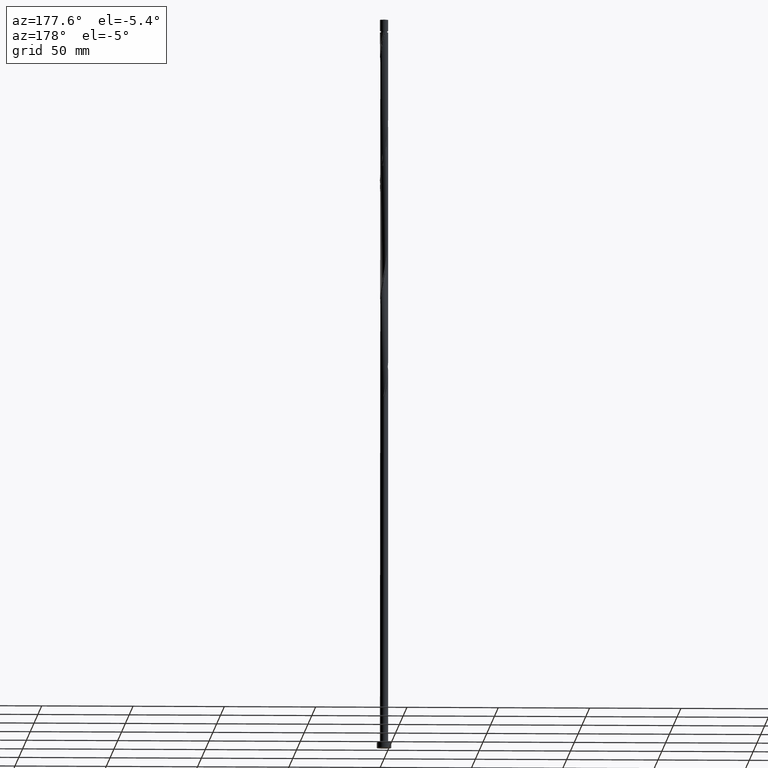
[diagram: clean part render]
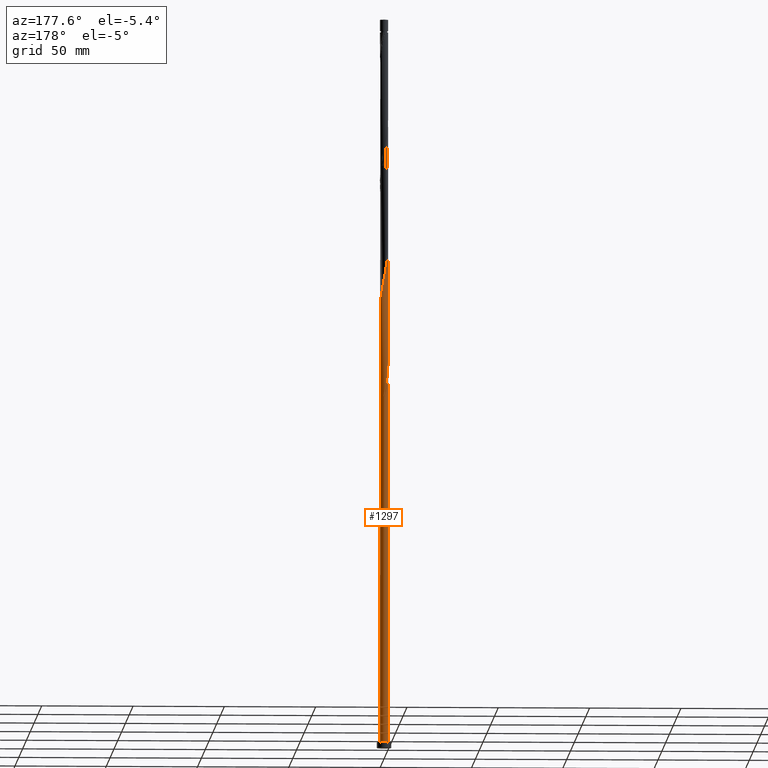
[diagram: same view with one face highlighted and labeled with its STEP entity id]
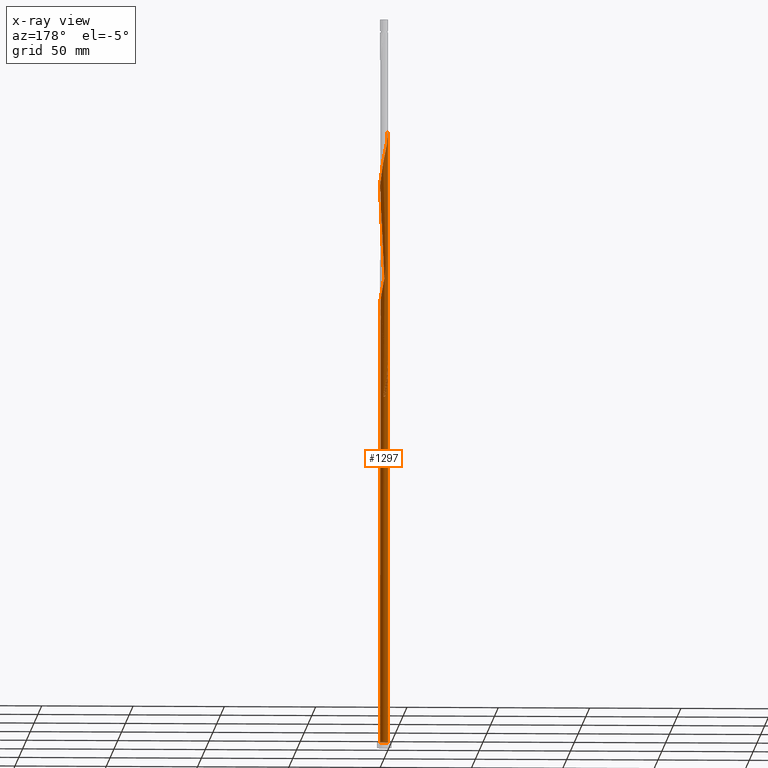
[diagram: x-ray of the same camera — body ghosted, the highlighted face saturated]
A machine part, auxiliary view. The second image highlights one B-rep face of the part: STEP entity #1297.
The next image is the same camera in x-ray: the body ghosted, the highlighted face saturated — about 0% of this face is hidden behind the body in this view.
In plain terms, the highlighted cylindrical surface (bore or boss wall) has radius 2.25 mm, axis along (-0, -0, -1).
Its self-contained STEP definition (entity closure, byte-faithful):
#9 = CARTESIAN_POINT ( 'NONE',  ( 0.6794991854587989488, -2.157940172845781657, 294.1518365135244153 ) ) ;
#11 =( BOUNDED_CURVE ( )  B_SPLINE_CURVE ( 2, ( #149, #721, #567, #1591, #1873, #1294, #557, #518, #1129, #279, #943, #141, #1730, #1151, #410, #1601, #859, #1834, #996, #233, #805, #1092, #1142, #849, #1750, #261, #1283, #371, #1540, #1394, #94, #975, #667, #577, #986, #710, #131, #1456, #1716, #1580, #1571, #1266, #691, #1862, #1274, #1444, #399, #1895, #831, #1435, #1427, #120, #429, #839, #700, #1885, #1740, #1028, #1305, #1161, #21, #202, #48, #608, #1760, #1184, #1017, #1794, #1782, #1476, #1316, #598, #181, #1613, #319, #877, #1174, #297, #37, #9, #438, #308, #1635, #910, #462, #168, #1772, #1040, #331, #1194, #901, #1350, #867, #1508, #1205, #449, #1657, #340, #890, #56, #1340, #762, #1489, #1803, #1625, #1329, #158, #588, #752, #619, #1466, #473, #1050, #742, #1648, #1498, #730, #483, #193, #630, #1060, #638, #1812 ),
 .UNSPECIFIED., .F., .T. ) 
 B_SPLINE_CURVE_WITH_KNOTS ( ( 3, 2, 2, 2, 2, 2, 2, 2, 2, 2, 2, 2, 2, 2, 2, 2, 2, 2, 2, 2, 2, 2, 2, 2, 2, 2, 2, 2, 2, 2, 2, 2, 2, 2, 2, 2, 2, 2, 2, 2, 2, 2, 2, 2, 2, 2, 2, 2, 2, 2, 2, 2, 2, 2, 2, 2, 2, 2, 2, 2, 2, 3 ),
 ( 0.05452860127731155165, 0.05833333333333334814, 0.06666666666666665186, 0.07499999999999995559, 0.08333333333333337034, 0.09166666666666667407, 0.09999999999999997780, 0.1083333333333332815, 0.1166666666666666963, 0.1250000000000000000, 0.1333333333333333037, 0.1416666666666667185, 0.1500000000000000222, 0.1583333333333333259, 0.1666666666666666297, 0.1750000000000000444, 0.1833333333333333481, 0.1916666666666666519, 0.1999999999999999556, 0.2083333333333333703, 0.2166666666666666741, 0.2249999999999999778, 0.2333333333333332815, 0.2416666666666666963, 0.2500000000000000000, 0.2583333333333333037, 0.2666666666666667185, 0.2750000000000000222, 0.2833333333333333259, 0.2916666666666666297, 0.3000000000000000444, 0.3083333333333333481, 0.3166666666666666519, 0.3249999999999999556, 0.3333333333333333703, 0.3416666666666666741, 0.3499999999999999778, 0.3583333333333332815, 0.3666666666666666963, 0.3750000000000000000, 0.3833333333333333037, 0.3916666666666667185, 0.4000000000000000222, 0.4083333333333333259, 0.4166666666666666297, 0.4250000000000000444, 0.4333333333333333481, 0.4416666666666666519, 0.4499999999999999556, 0.4583333333333333703, 0.4666666666666666741, 0.4749999999999999778, 0.4833333333333332815, 0.4916666666666666963, 0.5000000000000000000, 0.5083333333333333037, 0.5166666666666666075, 0.5250000000000000222, 0.5333333333333333259, 0.5416666666666667407, 0.5500000000000000444, 0.5545286012773110729 ),
 .UNSPECIFIED. ) 
 CURVE ( )  GEOMETRIC_REPRESENTATION_ITEM ( )  RATIONAL_B_SPLINE_CURVE ( ( 0.9066196499552687804, 0.9068171577856815047, 0.9090909090909804480, 0.9041108139712286107, 0.9090909090909804480, 0.9041108139712286107, 0.9090909090909804480, 0.9041108139712286107, 0.9090909090909804480, 0.9041108139712286107, 0.9090909090909804480, 0.9041108139712286107, 0.9090909090909804480, 0.9041108139712286107, 0.9090909090909804480, 0.9041108139712286107, 0.9090909090909804480, 0.9041108139712286107, 0.9090909090909804480, 0.9041108139712286107, 0.9090909090909804480, 0.9041108139712286107, 0.9090909090909804480, 0.9041108139712286107, 0.9090909090909804480, 0.9041108139712286107, 0.9090909090909804480, 0.9041108139712286107, 0.9090909090909804480, 0.9041108139712286107, 0.9090909090909804480, 0.9041108139712286107, 0.9090909090909804480, 0.9041108139712286107, 0.9090909090909804480, 0.9041108139712286107, 0.9090909090909804480, 0.9041108139712286107, 0.9090909090909804480, 0.9041108139712286107, 0.9090909090909804480, 0.9041108139712286107, 0.9090909090909804480, 0.9041108139712286107, 0.9090909090909804480, 0.9041108139712286107, 0.9090909090909804480, 0.9041108139712286107, 0.9090909090909804480, 0.9041108139712286107, 0.9090909090909804480, 0.9041108139712286107, 0.9090909090909804480, 0.9041108139712286107, 0.9090909090909804480, 0.9041108139712286107, 0.9090909090909804480, 0.9041108139712286107, 0.9090909090909804480, 0.9041108139712286107, 0.9090909090909804480, 0.9041108139712286107, 0.9090909090909804480, 0.9041108139712286107, 0.9090909090909804480, 0.9041108139712286107, 0.9090909090909804480, 0.9041108139712286107, 0.9090909090909804480, 0.9041108139712286107, 0.9090909090909804480, 0.9041108139712286107, 0.9090909090909804480, 0.9041108139712286107, 0.9090909090909804480, 0.9041108139712286107, 0.9090909090909804480, 0.9041108139712286107, 0.9090909090909804480, 0.9041108139712286107, 0.9090909090909804480, 0.9041108139712286107, 0.9090909090909804480, 0.9041108139712286107, 0.9090909090909804480, 0.9041108139712286107, 0.9090909090909804480, 0.9041108139712286107, 0.9090909090909804480, 0.9041108139712286107, 0.9090909090909804480, 0.9041108139712286107, 0.9090909090909804480, 0.9041108139712286107, 0.9090909090909804480, 0.9041108139712286107, 0.9090909090909804480, 0.9041108139712286107, 0.9090909090909804480, 0.9041108139712286107, 0.9090909090909804480, 0.9041108139712286107, 0.9090909090909804480, 0.9041108139712286107, 0.9090909090909804480, 0.9041108139712286107, 0.9090909090909804480, 0.9041108139712286107, 0.9090909090909804480, 0.9041108139712286107, 0.9090909090909804480, 0.9041108139712286107, 0.9090909090909804480, 0.9041108139712286107, 0.9090909090909804480, 0.9041108139712286107, 0.9090909090909804480, 0.9041108139712286107, 0.9090909090909804480, 0.9041108139712286107, 0.9090909090909804480, 0.9063845652765278871, 0.9066196499552687804 ) ) 
 REPRESENTATION_ITEM ( '' )  );
#21 = CARTESIAN_POINT ( 'NONE',  ( -2.235440230695801667, 0.2555522940353270878, 273.0407254024133863 ) ) ;
#22 = AXIS2_PLACEMENT_3D ( 'NONE', #1083, #496, #1818 ) ;
#37 = CARTESIAN_POINT ( 'NONE',  ( 0.4477443466979825759, -2.205000000000003180, 293.0407254024133863 ) ) ;
#39 = CARTESIAN_POINT ( 'NONE',  ( -2.249999999999999556, -1.091234325708519361E-15, 211.8328353126015031 ) ) ;
#48 = CARTESIAN_POINT ( 'NONE',  ( -2.239722807784164438, -0.2148062948133304950, 275.2629476246356148 ) ) ;
#56 = CARTESIAN_POINT ( 'NONE',  ( 1.529081416802029691, 1.667433642881044786, 316.3740587357467007 ) ) ;
#71 = CARTESIAN_POINT ( 'NONE',  ( -2.133458188693681201, 0.7147420213586817006, 204.1518365135244153 ) ) ;
#75 = CARTESIAN_POINT ( 'NONE',  ( -0.4878194838710431802, 2.196481766634038379, 197.4851698468577865 ) ) ;
#94 = CARTESIAN_POINT ( 'NONE',  ( 2.235440230695801667, -0.2555522940353273098, 239.7073920690800151 ) ) ;
#98 = CARTESIAN_POINT ( 'NONE',  ( -0.2569599475139706102, 2.247753660434001155, 196.3740587357466438 ) ) ;
#104 = VERTEX_POINT ( 'NONE', #129 ) ;
#111 = CIRCLE ( 'NONE', #1541, 2.250000000000000000 ) ;
#120 = CARTESIAN_POINT ( 'NONE',  ( -1.113311487977034275, 1.969508178038165358, 263.0407254024132726 ) ) ;
#129 = CARTESIAN_POINT ( 'NONE',  ( -2.250000000000002665, 7.773176018745549002E-16, 340.9152821588917277 ) ) ;
#131 = CARTESIAN_POINT ( 'NONE',  ( 1.958719006165831056, 1.107212651158192784, 246.3740587357466438 ) ) ;
#141 = CARTESIAN_POINT ( 'NONE',  ( -1.148988371153740085, -1.948910119932248275, 218.5962809579688155 ) ) ;
#149 = CARTESIAN_POINT ( 'NONE',  ( -2.250000000000003109, 2.234788105389345572E-15, 207.5819488255584702 ) ) ;
#158 = CARTESIAN_POINT ( 'NONE',  ( 0.02048521978840399382, 2.249906743794114927, 324.1518365135245858 ) ) ;
#168 = CARTESIAN_POINT ( 'NONE',  ( 1.818131797628322888, -1.346410672519218421, 300.8185031801910441 ) ) ;
#173 = VERTEX_POINT ( 'NONE', #753 ) ;
#181 = CARTESIAN_POINT ( 'NONE',  ( -0.9338336956909288888, -2.047059996383163494, 286.3740587357467007 ) ) ;
#193 = CARTESIAN_POINT ( 'NONE',  ( -2.133458188693681201, 0.7147420213586817006, 337.4851698468577297 ) ) ;
#202 = CARTESIAN_POINT ( 'NONE',  ( -2.262299859130773250, 0.02059805810591770411, 274.1518365135244153 ) ) ;
#215 = CARTESIAN_POINT ( 'NONE',  ( -0.8964053367179171117, 2.063724175441973951, 195.2629476246355580 ) ) ;
#229 = CARTESIAN_POINT ( 'NONE',  ( -0.9338336956909263353, 2.047059996383160829, 199.7073920690799866 ) ) ;
#233 = CARTESIAN_POINT ( 'NONE',  ( 0.6794991854587989488, -2.157940172845781657, 227.4851698468577297 ) ) ;
#246 = EDGE_CURVE ( 'NONE', #1396, #982, #111, .T. ) ;
#261 = CARTESIAN_POINT ( 'NONE',  ( 1.818131797628322888, -1.346410672519218421, 234.1518365135244437 ) ) ;
#270 = DIRECTION ( 'NONE',  ( -1.000000000000000000, 0.000000000000000000, 0.000000000000000000 ) ) ;
#279 = CARTESIAN_POINT ( 'NONE',  ( -1.529081416802029691, -1.667433642881045008, 216.3740587357466723 ) ) ;
#285 = CIRCLE ( 'NONE', #22, 2.250000000000000000 ) ;
#289 = DIRECTION ( 'NONE',  ( -0.000000000000000000, -0.000000000000000000, -1.000000000000000000 ) ) ;
#297 = CARTESIAN_POINT ( 'NONE',  ( 0.2159895079371652871, -2.252059827154224259, 291.9296142913020731 ) ) ;
#308 = CARTESIAN_POINT ( 'NONE',  ( 1.113311487977034053, -1.969508178038165802, 296.3740587357466438 ) ) ;
#319 = CARTESIAN_POINT ( 'NONE',  ( -0.4878194838710451786, -2.196481766634041044, 288.5962809579689861 ) ) ;
#331 = CARTESIAN_POINT ( 'NONE',  ( 2.133458188693681201, -0.7147420213586823667, 304.1518365135244721 ) ) ;
#340 = CARTESIAN_POINT ( 'NONE',  ( 1.842346267189367559, 1.313082314401597728, 314.1518365135244721 ) ) ;
#346 = CARTESIAN_POINT ( 'NONE',  ( -1.305889112093236770, 1.832253701569832804, 197.4851698468577297 ) ) ;
#358 = ORIENTED_EDGE ( 'NONE', *, *, #646, .T. ) ;
#360 = CARTESIAN_POINT ( 'NONE',  ( -2.217145756437552517, 0.4502106477325790168, 209.7073920690799866 ) ) ;
#371 = CARTESIAN_POINT ( 'NONE',  ( 2.058335775126532319, -0.9389775127526261977, 236.3740587357466154 ) ) ;
#399 = CARTESIAN_POINT ( 'NONE',  ( 0.02048521978840399382, 2.249906743794114927, 257.4851698468577865 ) ) ;
#401 =( BOUNDED_CURVE ( )  B_SPLINE_CURVE ( 2, ( #1330, #1370, #1399, #360, #948, #782, #1222, #1839, #1096, #817, #533, #939, #229, #1378, #75, #98, #524, #1855, #1690 ),
 .UNSPECIFIED., .F., .T. ) 
 B_SPLINE_CURVE_WITH_KNOTS ( ( 3, 2, 2, 2, 2, 2, 2, 2, 2, 3 ),
 ( 0.9295286012773114059, 0.9333333333333333481, 0.9416666666666666519, 0.9499999999999999556, 0.9583333333333333703, 0.9666666666666666741, 0.9749999999999999778, 0.9833333333333332815, 0.9916666666666666963, 1.000000000000000000 ),
 .UNSPECIFIED. ) 
 CURVE ( )  GEOMETRIC_REPRESENTATION_ITEM ( )  RATIONAL_B_SPLINE_CURVE ( ( 0.9066196499552608978, 0.9068171577856736221, 0.9090909090909725654, 0.9041108139712207281, 0.9090909090909725654, 0.9041108139712207281, 0.9090909090909725654, 0.9041108139712207281, 0.9090909090909725654, 0.9041108139712207281, 0.9090909090909725654, 0.9041108139712207281, 0.9090909090909725654, 0.9041108139712207281, 0.9090909090909725654, 0.9041108139712207281, 0.9090909090909725654, 0.9041108139712207281, 0.9090909090909725654 ) ) 
 REPRESENTATION_ITEM ( '' )  );
#406 = ORIENTED_EDGE ( 'NONE', *, *, #1887, .F. ) ;
#410 = CARTESIAN_POINT ( 'NONE',  ( -0.4878194838710451786, -2.196481766634041044, 221.9296142913022436 ) ) ;
#422 = ORIENTED_EDGE ( 'NONE', *, *, #911, .F. ) ;
#429 = CARTESIAN_POINT ( 'NONE',  ( -1.305889112093236770, 1.832253701569832804, 264.1518365135244153 ) ) ;
#438 = CARTESIAN_POINT ( 'NONE',  ( 0.8964053367179166676, -2.063724175441973951, 295.2629476246355011 ) ) ;
#449 = CARTESIAN_POINT ( 'NONE',  ( 2.075091745142295885, 0.9013429879147859536, 311.9296142913022436 ) ) ;
#462 = CARTESIAN_POINT ( 'NONE',  ( 1.658299266918881409, -1.520704948810359447, 299.7073920690799582 ) ) ;
#473 = CARTESIAN_POINT ( 'NONE',  ( -1.113311487977034275, 1.969508178038165358, 329.7073920690799582 ) ) ;
#483 = CARTESIAN_POINT ( 'NONE',  ( -2.058335775126532319, 0.9389775127526257537, 336.3740587357467007 ) ) ;
#488 = CARTESIAN_POINT ( 'NONE',  ( -2.208580602260827863, 0.4905065299647369814, 205.2629476246355580 ) ) ;
#496 = DIRECTION ( 'NONE',  ( -2.054325274013051950E-29, -3.083952846180992213E-14, -1.000000000000000000 ) ) ;
#502 = AXIS2_PLACEMENT_3D ( 'NONE', #1433, #973, #564 ) ;
#508 = CARTESIAN_POINT ( 'NONE',  ( -2.058335775126532319, 0.9389775127526257537, 203.0407254024132726 ) ) ;
#518 = CARTESIAN_POINT ( 'NONE',  ( -1.842346267189367337, -1.313082314401598394, 214.1518365135243585 ) ) ;
#524 = CARTESIAN_POINT ( 'NONE',  ( -0.02048521978840224869, 2.249906743794110930, 195.2629476246355580 ) ) ;
#529 = EDGE_CURVE ( 'NONE', #982, #1396, #1602, .T. ) ;
#533 = CARTESIAN_POINT ( 'NONE',  ( -1.339034893977881335, 1.808171881406644088, 201.9296142913022436 ) ) ;
#548 = FACE_OUTER_BOUND ( 'NONE', #1333, .T. ) ;
#557 = CARTESIAN_POINT ( 'NONE',  ( -1.958719006165831056, -1.107212651158192784, 213.0407254024133010 ) ) ;
#564 = DIRECTION ( 'NONE',  ( 1.000000000000000000, 0.000000000000000000, 0.000000000000000000 ) ) ;
#567 = CARTESIAN_POINT ( 'NONE',  ( -2.239722807784164438, -0.2148062948133304950, 208.5962809579689008 ) ) ;
#577 = CARTESIAN_POINT ( 'NONE',  ( 2.217145756437556514, 0.4502106477325789058, 243.0407254024133579 ) ) ;
#580 = VERTEX_POINT ( 'NONE', #874 ) ;
#588 = CARTESIAN_POINT ( 'NONE',  ( -0.2159895079371639826, 2.252059827154224259, 325.2629476246355011 ) ) ;
#598 = CARTESIAN_POINT ( 'NONE',  ( -1.148988371153740085, -1.948910119932248275, 285.2629476246356148 ) ) ;
#608 = CARTESIAN_POINT ( 'NONE',  ( -2.217145756437556514, -0.4502106477325790723, 276.3740587357465301 ) ) ;
#613 = ORIENTED_EDGE ( 'NONE', *, *, #993, .T. ) ;
#619 = CARTESIAN_POINT ( 'NONE',  ( -0.6794991854587996150, 2.157940172845781213, 327.4851698468577297 ) ) ;
#630 = CARTESIAN_POINT ( 'NONE',  ( -2.208580602260827863, 0.4905065299647369814, 338.5962809579688155 ) ) ;
#638 = CARTESIAN_POINT ( 'NONE',  ( -2.250000000000002220, 0.1281909092544831485, 340.3096908495072057 ) ) ;
#646 = EDGE_CURVE ( 'NONE', #580, #1396, #936, .T. ) ;
#650 = CARTESIAN_POINT ( 'NONE',  ( -1.498466736209439043, 1.694999225101500251, 198.5962809579688439 ) ) ;
#667 = CARTESIAN_POINT ( 'NONE',  ( 2.239722807784165326, 0.2148062948133293015, 241.9296142913021868 ) ) ;
#691 = CARTESIAN_POINT ( 'NONE',  ( 0.9338336956909291109, 2.047059996383163494, 253.0407254024133579 ) ) ;
#700 = CARTESIAN_POINT ( 'NONE',  ( -1.658299266918881631, 1.520704948810359225, 266.3740587357465870 ) ) ;
#710 = CARTESIAN_POINT ( 'NONE',  ( 2.075091745142295885, 0.9013429879147859536, 245.2629476246354727 ) ) ;
#721 = CARTESIAN_POINT ( 'NONE',  ( -2.250000000000002220, -0.1076489983951904317, 208.0904973511225080 ) ) ;
#730 = CARTESIAN_POINT ( 'NONE',  ( -1.938233786377428602, 1.142694092635922365, 335.2629476246356148 ) ) ;
#742 = CARTESIAN_POINT ( 'NONE',  ( -1.498466736209439043, 1.694999225101500251, 331.9296142913021868 ) ) ;
#752 = CARTESIAN_POINT ( 'NONE',  ( -0.4477443466979822984, 2.205000000000003180, 326.3740587357467007 ) ) ;
#753 = CARTESIAN_POINT ( 'NONE',  ( -0.4477443466979822428, 2.205000000000003180, 193.0407254024133010 ) ) ;
#762 = CARTESIAN_POINT ( 'NONE',  ( 1.148988371153740751, 1.948910119932247387, 318.5962809579688724 ) ) ;
#782 = CARTESIAN_POINT ( 'NONE',  ( -2.075091745142291444, 0.9013429879147865087, 207.4851698468577581 ) ) ;
#805 = CARTESIAN_POINT ( 'NONE',  ( 0.8964053367179166676, -2.063724175441973951, 228.5962809579688724 ) ) ;
#816 = ORIENTED_EDGE ( 'NONE', *, *, #246, .T. ) ;
#817 = CARTESIAN_POINT ( 'NONE',  ( -1.529081416802026583, 1.667433642881041900, 203.0407254024133294 ) ) ;
#826 = AXIS2_PLACEMENT_3D ( 'NONE', #1120, #289, #270 ) ;
#831 = CARTESIAN_POINT ( 'NONE',  ( -0.4477443466979822984, 2.205000000000003180, 259.7073920690800719 ) ) ;
#839 = CARTESIAN_POINT ( 'NONE',  ( -1.498466736209439043, 1.694999225101500251, 265.2629476246355580 ) ) ;
#849 = CARTESIAN_POINT ( 'NONE',  ( 1.498466736209437933, -1.694999225101500251, 231.9296142913022152 ) ) ;
#859 = CARTESIAN_POINT ( 'NONE',  ( -0.02048521978840372668, -2.249906743794114927, 224.1518365135244153 ) ) ;
#867 = CARTESIAN_POINT ( 'NONE',  ( 2.239722807784165326, 0.2148062948133293015, 308.5962809579689861 ) ) ;
#874 = CARTESIAN_POINT ( 'NONE',  ( -2.250000000000003109, 2.234788105389345572E-15, 207.5819488255584702 ) ) ;
#877 = CARTESIAN_POINT ( 'NONE',  ( -0.2569599475139717204, -2.247753660434005152, 289.7073920690799582 ) ) ;
#890 = CARTESIAN_POINT ( 'NONE',  ( 1.685713841995699624, 1.490257978641320147, 315.2629476246354443 ) ) ;
#893 = DIRECTION ( 'NONE',  ( 1.000000000000000000, 0.000000000000000000, 0.000000000000000000 ) ) ;
#897 = CARTESIAN_POINT ( 'NONE',  ( -0.4477443466979822428, 2.205000000000003180, 193.0407254024133010 ) ) ;
#901 = CARTESIAN_POINT ( 'NONE',  ( 2.235440230695801667, -0.2555522940353273098, 306.3740587357467007 ) ) ;
#910 = CARTESIAN_POINT ( 'NONE',  ( 1.498466736209437933, -1.694999225101500251, 298.5962809579689292 ) ) ;
#911 = EDGE_CURVE ( 'NONE', #173, #580, #981, .T. ) ;
#927 = LINE ( 'NONE', #1056, #1570 ) ;
#935 = DIRECTION ( 'NONE',  ( -0.000000000000000000, -0.000000000000000000, -1.000000000000000000 ) ) ;
#936 = LINE ( 'NONE', #1368, #1695 ) ;
#939 = CARTESIAN_POINT ( 'NONE',  ( -1.148988371153736976, 1.948910119932245166, 200.8185031801911293 ) ) ;
#943 = CARTESIAN_POINT ( 'NONE',  ( -1.339034893977885110, -1.808171881406646087, 217.4851698468578434 ) ) ;
#947 = VERTEX_POINT ( 'NONE', #1045 ) ;
#948 = CARTESIAN_POINT ( 'NONE',  ( -2.146118750789922203, 0.6757768178236830403, 208.5962809579689292 ) ) ;
#973 = DIRECTION ( 'NONE',  ( 0.000000000000000000, 0.000000000000000000, 1.000000000000000000 ) ) ;
#975 = CARTESIAN_POINT ( 'NONE',  ( 2.262299859130773694, -0.02059805810591844311, 240.8185031801911293 ) ) ;
#982 = VERTEX_POINT ( 'NONE', #1226 ) ;
#981 =( BOUNDED_CURVE ( )  B_SPLINE_CURVE ( 2, ( #897, #1530, #215, #1677, #346, #650, #1495, #1669, #1236, #508, #71, #488, #1346, #1067, #1826 ),
 .UNSPECIFIED., .F., .T. ) 
 B_SPLINE_CURVE_WITH_KNOTS ( ( 3, 2, 2, 2, 2, 2, 2, 3 ),
 ( 0.000000000000000000, 0.008333333333333303727, 0.01666666666666671848, 0.02500000000000002220, 0.03333333333333332593, 0.04166666666666662966, 0.05000000000000004441, 0.05452860127731155165 ),
 .UNSPECIFIED. ) 
 CURVE ( )  GEOMETRIC_REPRESENTATION_ITEM ( )  RATIONAL_B_SPLINE_CURVE ( ( 0.9090909090909804480, 0.9041108139712286107, 0.9090909090909804480, 0.9041108139712286107, 0.9090909090909804480, 0.9041108139712286107, 0.9090909090909804480, 0.9041108139712286107, 0.9090909090909804480, 0.9041108139712286107, 0.9090909090909804480, 0.9041108139712286107, 0.9090909090909804480, 0.9063845652765275540, 0.9066196499552687804 ) ) 
 REPRESENTATION_ITEM ( '' )  );
#986 = CARTESIAN_POINT ( 'NONE',  ( 2.146118750789926644, 0.6757768178236822632, 244.1518365135244153 ) ) ;
#993 = EDGE_CURVE ( 'NONE', #173, #947, #285, .T. ) ;
#996 = CARTESIAN_POINT ( 'NONE',  ( 0.4477443466979825759, -2.205000000000003180, 226.3740587357466154 ) ) ;
#1017 = CARTESIAN_POINT ( 'NONE',  ( -1.958719006165831056, -1.107212651158192784, 279.7073920690799582 ) ) ;
#1028 = CARTESIAN_POINT ( 'NONE',  ( -2.058335775126532319, 0.9389775127526257537, 269.7073920690799582 ) ) ;
#1040 = CARTESIAN_POINT ( 'NONE',  ( 2.058335775126532319, -0.9389775127526261977, 303.0407254024133863 ) ) ;
#1045 = CARTESIAN_POINT ( 'NONE',  ( 0.4477443466979829645, 2.204999999999999183, 193.0407254024133010 ) ) ;
#1050 = CARTESIAN_POINT ( 'NONE',  ( -1.305889112093236770, 1.832253701569832804, 330.8185031801911009 ) ) ;
#1056 = CARTESIAN_POINT ( 'NONE',  ( -2.250000000000000000, 0.000000000000000000, 400.0000000000000000 ) ) ;
#1060 = CARTESIAN_POINT ( 'NONE',  ( -2.235440230695801667, 0.2555522940353270878, 339.7073920690800719 ) ) ;
#1061 = EDGE_CURVE ( 'NONE', #104, #1679, #927, .T. ) ;
#1067 = CARTESIAN_POINT ( 'NONE',  ( -2.250000000000003553, 0.1281909092544696593, 206.9763575161739197 ) ) ;
#1083 = CARTESIAN_POINT ( 'NONE',  ( 0.000000000000000000, 0.000000000000000000, 193.0407254024133579 ) ) ;
#1092 = CARTESIAN_POINT ( 'NONE',  ( 1.113311487977034053, -1.969508178038165802, 229.7073920690800151 ) ) ;
#1096 = CARTESIAN_POINT ( 'NONE',  ( -1.685713841995694739, 1.490257978641319481, 204.1518365135244153 ) ) ;
#1120 = CARTESIAN_POINT ( 'NONE',  ( 0.000000000000000000, 0.000000000000000000, 400.0000000000000000 ) ) ;
#1129 = CARTESIAN_POINT ( 'NONE',  ( -1.685713841995698958, -1.490257978641321257, 215.2629476246355296 ) ) ;
#1142 = CARTESIAN_POINT ( 'NONE',  ( 1.305889112093235882, -1.832253701569833249, 230.8185031801911009 ) ) ;
#1151 = CARTESIAN_POINT ( 'NONE',  ( -0.7186790202281182482, -2.145209872834078713, 220.8185031801911293 ) ) ;
#1154 = ORIENTED_EDGE ( 'NONE', *, *, #529, .T. ) ;
#1161 = CARTESIAN_POINT ( 'NONE',  ( -2.208580602260827863, 0.4905065299647369814, 271.9296142913021868 ) ) ;
#1174 = CARTESIAN_POINT ( 'NONE',  ( -0.02048521978840372668, -2.249906743794114927, 290.8185031801911578 ) ) ;
#1184 = CARTESIAN_POINT ( 'NONE',  ( -2.075091745142295441, -0.9013429879147869528, 278.5962809579688724 ) ) ;
#1194 = CARTESIAN_POINT ( 'NONE',  ( 2.208580602260827863, -0.4905065299647383137, 305.2629476246354443 ) ) ;
#1196 = CARTESIAN_POINT ( 'NONE',  ( -2.250000000000000000, 0.000000000000000000, 3.000000000000000000 ) ) ;
#1205 = CARTESIAN_POINT ( 'NONE',  ( 2.146118750789926644, 0.6757768178236822632, 310.8185031801911009 ) ) ;
#1222 = CARTESIAN_POINT ( 'NONE',  ( -1.958719006165827281, 1.107212651158191452, 206.3740587357466438 ) ) ;
#1226 = CARTESIAN_POINT ( 'NONE',  ( 2.250000000000000000, 0.000000000000000000, 3.000000000000000000 ) ) ;
#1236 = CARTESIAN_POINT ( 'NONE',  ( -1.938233786377428602, 1.142694092635922365, 201.9296142913022436 ) ) ;
#1266 = CARTESIAN_POINT ( 'NONE',  ( 1.148988371153740751, 1.948910119932247387, 251.9296142913022152 ) ) ;
#1274 = CARTESIAN_POINT ( 'NONE',  ( 0.4878194838710463443, 2.196481766634041044, 255.2629476246355580 ) ) ;
#1283 = CARTESIAN_POINT ( 'NONE',  ( 1.938233786377428158, -1.142694092635922587, 235.2629476246355864 ) ) ;
#1294 = CARTESIAN_POINT ( 'NONE',  ( -2.075091745142295441, -0.9013429879147869528, 211.9296142913022152 ) ) ;
#1297 = ADVANCED_FACE ( 'NONE', ( #548 ), #1685, .T. ) ;
#1298 = ORIENTED_EDGE ( 'NONE', *, *, #1341, .F. ) ;
#1305 = CARTESIAN_POINT ( 'NONE',  ( -2.133458188693681201, 0.7147420213586817006, 270.8185031801911009 ) ) ;
#1316 = CARTESIAN_POINT ( 'NONE',  ( -1.339034893977885110, -1.808171881406646087, 284.1518365135244153 ) ) ;
#1329 = CARTESIAN_POINT ( 'NONE',  ( 0.2569599475139721645, 2.247753660434005152, 323.0407254024132726 ) ) ;
#1330 = CARTESIAN_POINT ( 'NONE',  ( -2.249999999999999556, -1.091234325708519361E-15, 211.8328353126015031 ) ) ;
#1333 = EDGE_LOOP ( 'NONE', ( #1525, #1298, #358, #816, #1154, #1715, #422, #613, #406 ) ) ;
#1340 = CARTESIAN_POINT ( 'NONE',  ( 1.339034893977885332, 1.808171881406645642, 317.4851698468577865 ) ) ;
#1341 = EDGE_CURVE ( 'NONE', #580, #104, #11, .T. ) ;
#1346 = CARTESIAN_POINT ( 'NONE',  ( -2.235440230695801667, 0.2555522940353270878, 206.3740587357466438 ) ) ;
#1350 = CARTESIAN_POINT ( 'NONE',  ( 2.262299859130773694, -0.02059805810591844311, 307.4851698468577865 ) ) ;
#1368 = CARTESIAN_POINT ( 'NONE',  ( -2.250000000000000000, 0.000000000000000000, 400.0000000000000000 ) ) ;
#1370 = CARTESIAN_POINT ( 'NONE',  ( -2.250000000000000444, 0.1076489983951873508, 211.3242867870374084 ) ) ;
#1378 = CARTESIAN_POINT ( 'NONE',  ( -0.7186790202281158058, 2.145209872834075160, 198.5962809579688439 ) ) ;
#1394 = CARTESIAN_POINT ( 'NONE',  ( 2.208580602260827863, -0.4905065299647383137, 238.5962809579688439 ) ) ;
#1396 = VERTEX_POINT ( 'NONE', #1196 ) ;
#1399 = CARTESIAN_POINT ( 'NONE',  ( -2.239722807784161773, 0.2148062948133313277, 210.8185031801911009 ) ) ;
#1427 = CARTESIAN_POINT ( 'NONE',  ( -0.8964053367179171117, 2.063724175441973951, 261.9296142913022436 ) ) ;
#1433 = CARTESIAN_POINT ( 'NONE',  ( 0.000000000000000000, 0.000000000000000000, 3.000000000000000000 ) ) ;
#1435 = CARTESIAN_POINT ( 'NONE',  ( -0.6794991854587996150, 2.157940172845781213, 260.8185031801911009 ) ) ;
#1444 = CARTESIAN_POINT ( 'NONE',  ( 0.2569599475139721645, 2.247753660434005152, 256.3740587357465870 ) ) ;
#1456 = CARTESIAN_POINT ( 'NONE',  ( 1.842346267189367559, 1.313082314401597728, 247.4851698468577297 ) ) ;
#1466 = CARTESIAN_POINT ( 'NONE',  ( -0.8964053367179171117, 2.063724175441973951, 328.5962809579689292 ) ) ;
#1476 = CARTESIAN_POINT ( 'NONE',  ( -1.529081416802029691, -1.667433642881045008, 283.0407254024133294 ) ) ;
#1489 = CARTESIAN_POINT ( 'NONE',  ( 0.9338336956909291109, 2.047059996383163494, 319.7073920690801287 ) ) ;
#1495 = CARTESIAN_POINT ( 'NONE',  ( -1.658299266918881631, 1.520704948810359225, 199.7073920690800435 ) ) ;
#1498 = CARTESIAN_POINT ( 'NONE',  ( -1.818131797628323332, 1.346410672519218199, 334.1518365135244721 ) ) ;
#1499 = CARTESIAN_POINT ( 'NONE',  ( 0.000000000000000000, 0.000000000000000000, 3.000000000000000000 ) ) ;
#1508 = CARTESIAN_POINT ( 'NONE',  ( 2.217145756437556514, 0.4502106477325789058, 309.7073920690799582 ) ) ;
#1525 = ORIENTED_EDGE ( 'NONE', *, *, #1061, .F. ) ;
#1530 = CARTESIAN_POINT ( 'NONE',  ( -0.6794991854587996150, 2.157940172845781213, 194.1518365135244153 ) ) ;
#1540 = CARTESIAN_POINT ( 'NONE',  ( 2.133458188693681201, -0.7147420213586823667, 237.4851698468577865 ) ) ;
#1541 = AXIS2_PLACEMENT_3D ( 'NONE', #1499, #1752, #893 ) ;
#1570 = VECTOR ( 'NONE', #935, 1000.000000000000000 ) ;
#1571 = CARTESIAN_POINT ( 'NONE',  ( 1.339034893977885332, 1.808171881406645642, 250.8185031801911009 ) ) ;
#1580 = CARTESIAN_POINT ( 'NONE',  ( 1.529081416802029691, 1.667433642881044786, 249.7073920690799014 ) ) ;
#1591 = CARTESIAN_POINT ( 'NONE',  ( -2.217145756437556514, -0.4502106477325790723, 209.7073920690799582 ) ) ;
#1601 = CARTESIAN_POINT ( 'NONE',  ( -0.2569599475139717204, -2.247753660434005152, 223.0407254024132726 ) ) ;
#1602 = CIRCLE ( 'NONE', #502, 2.250000000000000000 ) ;
#1613 = CARTESIAN_POINT ( 'NONE',  ( -0.7186790202281182482, -2.145209872834078713, 287.4851698468576728 ) ) ;
#1625 = CARTESIAN_POINT ( 'NONE',  ( 0.4878194838710463443, 2.196481766634041044, 321.9296142913021299 ) ) ;
#1635 = CARTESIAN_POINT ( 'NONE',  ( 1.305889112093235882, -1.832253701569833249, 297.4851698468577865 ) ) ;
#1648 = CARTESIAN_POINT ( 'NONE',  ( -1.658299266918881631, 1.520704948810359225, 333.0407254024133294 ) ) ;
#1657 = CARTESIAN_POINT ( 'NONE',  ( 1.958719006165831056, 1.107212651158192784, 313.0407254024132726 ) ) ;
#1663 = DIRECTION ( 'NONE',  ( -0.000000000000000000, -0.000000000000000000, -1.000000000000000000 ) ) ;
#1669 = CARTESIAN_POINT ( 'NONE',  ( -1.818131797628323332, 1.346410672519218199, 200.8185031801910725 ) ) ;
#1677 = CARTESIAN_POINT ( 'NONE',  ( -1.113311487977034275, 1.969508178038165358, 196.3740587357465870 ) ) ;
#1679 = VERTEX_POINT ( 'NONE', #39 ) ;
#1685 = CYLINDRICAL_SURFACE ( 'NONE', #826, 2.250000000000000000 ) ;
#1690 = CARTESIAN_POINT ( 'NONE',  ( 0.4477443466979830200, 2.204999999999999183, 193.0407254024133010 ) ) ;
#1695 = VECTOR ( 'NONE', #1663, 1000.000000000000000 ) ;
#1715 = ORIENTED_EDGE ( 'NONE', *, *, #646, .F. ) ;
#1716 = CARTESIAN_POINT ( 'NONE',  ( 1.685713841995699624, 1.490257978641320147, 248.5962809579689292 ) ) ;
#1730 = CARTESIAN_POINT ( 'NONE',  ( -0.9338336956909288888, -2.047059996383163494, 219.7073920690799866 ) ) ;
#1740 = CARTESIAN_POINT ( 'NONE',  ( -1.938233786377428602, 1.142694092635922365, 268.5962809579687587 ) ) ;
#1750 = CARTESIAN_POINT ( 'NONE',  ( 1.658299266918881409, -1.520704948810359447, 233.0407254024133863 ) ) ;
#1752 = DIRECTION ( 'NONE',  ( 0.000000000000000000, 0.000000000000000000, 1.000000000000000000 ) ) ;
#1760 = CARTESIAN_POINT ( 'NONE',  ( -2.146118750789926644, -0.6757768178236830403, 277.4851698468578434 ) ) ;
#1772 = CARTESIAN_POINT ( 'NONE',  ( 1.938233786377428158, -1.142694092635922587, 301.9296142913021299 ) ) ;
#1782 = CARTESIAN_POINT ( 'NONE',  ( -1.685713841995698958, -1.490257978641321257, 281.9296142913021299 ) ) ;
#1794 = CARTESIAN_POINT ( 'NONE',  ( -1.842346267189367337, -1.313082314401598394, 280.8185031801911009 ) ) ;
#1803 = CARTESIAN_POINT ( 'NONE',  ( 0.7186790202281185813, 2.145209872834078713, 320.8185031801911578 ) ) ;
#1812 = CARTESIAN_POINT ( 'NONE',  ( -2.250000000000002665, 7.773176018745549002E-16, 340.9152821588917845 ) ) ;
#1818 = DIRECTION ( 'NONE',  ( 0.000000000000000000, 1.000000000000000000, -3.700743415417188258E-14 ) ) ;
#1826 = CARTESIAN_POINT ( 'NONE',  ( -2.250000000000003109, 2.234788105389345572E-15, 207.5819488255584702 ) ) ;
#1834 = CARTESIAN_POINT ( 'NONE',  ( 0.2159895079371652871, -2.252059827154224259, 225.2629476246355011 ) ) ;
#1839 = CARTESIAN_POINT ( 'NONE',  ( -1.842346267189362896, 1.313082314401596618, 205.2629476246355296 ) ) ;
#1855 = CARTESIAN_POINT ( 'NONE',  ( 0.2159895079371659254, 2.252059827154219818, 194.1518365135244153 ) ) ;
#1862 = CARTESIAN_POINT ( 'NONE',  ( 0.7186790202281185813, 2.145209872834078713, 254.1518365135243869 ) ) ;
#1873 = CARTESIAN_POINT ( 'NONE',  ( -2.146118750789926644, -0.6757768178236830403, 210.8185031801911293 ) ) ;
#1885 = CARTESIAN_POINT ( 'NONE',  ( -1.818131797628323332, 1.346410672519218199, 267.4851698468577297 ) ) ;
#1887 = EDGE_CURVE ( 'NONE', #1679, #947, #401, .T. ) ;
#1895 = CARTESIAN_POINT ( 'NONE',  ( -0.2159895079371639826, 2.252059827154224259, 258.5962809579688155 ) ) ;